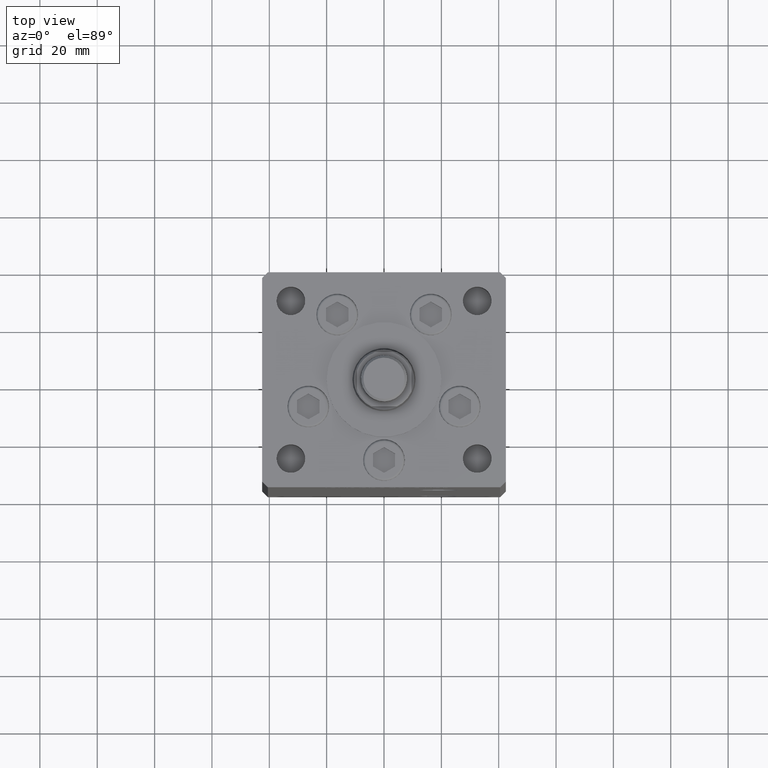
[diagram: clean part render]
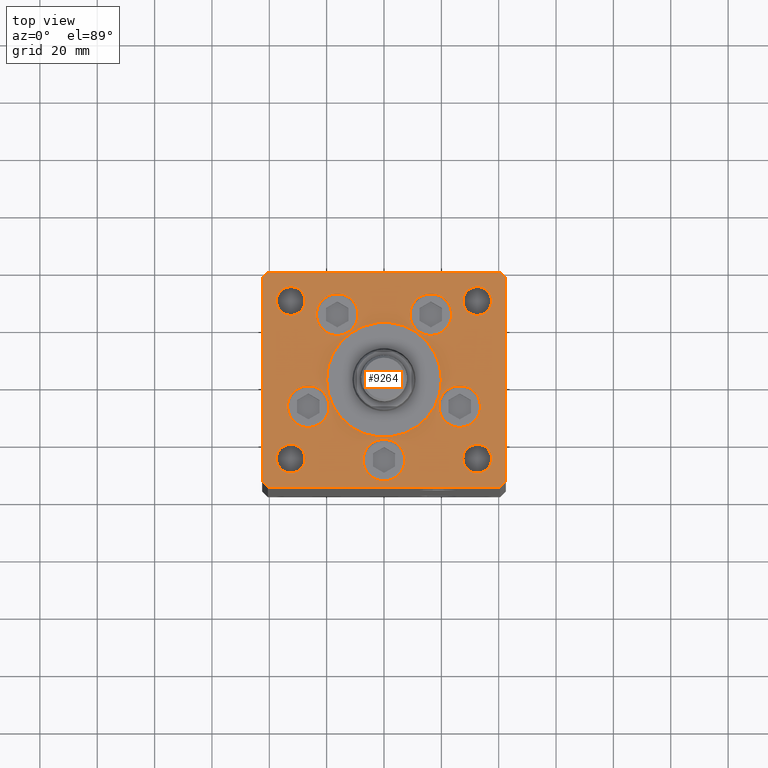
[diagram: same view with one face highlighted and labeled with its STEP entity id]
A machine part, top view. The second image highlights one B-rep face of the part: STEP entity #9264.
In plain terms, the highlighted planar face has unit normal (0, 0, 1).
Its self-contained STEP definition (entity closure, byte-faithful):
#113 = FACE_BOUND ( 'NONE', #35630, .T. ) ;
#317 = CARTESIAN_POINT ( 'NONE',  ( -33.64865316429777664, -9.333333333333328596, 0.000000000000000000 ) ) ;
#333 = AXIS2_PLACEMENT_3D ( 'NONE', #48482, #36827, #16151 ) ;
#346 = VERTEX_POINT ( 'NONE', #44888 ) ;
#647 = DIRECTION ( 'NONE',  ( -0.7071067811865524577, 0.7071067811865426878, 0.000000000000000000 ) ) ;
#734 = DIRECTION ( 'NONE',  ( 0.7071067811865487940, -0.7071067811865463515, 0.000000000000000000 ) ) ;
#1220 = AXIS2_PLACEMENT_3D ( 'NONE', #38939, #46353, #18275 ) ;
#1226 = VERTEX_POINT ( 'NONE', #26336 ) ;
#1297 = CARTESIAN_POINT ( 'NONE',  ( -40.50000000000000711, -37.50000000000003553, 0.000000000000000000 ) ) ;
#1333 = DIRECTION ( 'NONE',  ( -1.000000000000000000, -4.283267841918041508E-16, 0.000000000000000000 ) ) ;
#1534 = DIRECTION ( 'NONE',  ( -0.000000000000000000, -0.000000000000000000, -1.000000000000000000 ) ) ;
#1543 = VERTEX_POINT ( 'NONE', #35227 ) ;
#1621 = ORIENTED_EDGE ( 'NONE', *, *, #17884, .T. ) ;
#1698 = CARTESIAN_POINT ( 'NONE',  ( 33.64865316429777664, -9.333333333333330373, 0.000000000000000000 ) ) ;
#2116 = CARTESIAN_POINT ( 'NONE',  ( -19.14865316429777664, -9.333333333333330373, 0.000000000000000000 ) ) ;
#2189 = AXIS2_PLACEMENT_3D ( 'NONE', #14728, #38588, #39117 ) ;
#2220 = EDGE_CURVE ( 'NONE', #51420, #346, #47024, .T. ) ;
#2434 = DIRECTION ( 'NONE',  ( 1.000000000000000000, 0.000000000000000000, 0.000000000000000000 ) ) ;
#2469 = VERTEX_POINT ( 'NONE', #49538 ) ;
#2810 = DIRECTION ( 'NONE',  ( 1.000000000000000000, 0.000000000000000000, 0.000000000000000000 ) ) ;
#3305 = DIRECTION ( 'NONE',  ( -0.000000000000000000, 0.000000000000000000, 1.000000000000000000 ) ) ;
#3570 = CARTESIAN_POINT ( 'NONE',  ( 42.50000000000001421, 35.50000000000002132, 0.000000000000000000 ) ) ;
#4218 = CARTESIAN_POINT ( 'NONE',  ( -32.50000000000000000, -27.50000000000000355, 0.000000000000000000 ) ) ;
#4289 = CIRCLE ( 'NONE', #32224, 20.00000000000000000 ) ;
#4484 = DIRECTION ( 'NONE',  ( 0.000000000000000000, 0.000000000000000000, 1.000000000000000000 ) ) ;
#4492 = VERTEX_POINT ( 'NONE', #21078 ) ;
#4633 = ORIENTED_EDGE ( 'NONE', *, *, #22548, .F. ) ;
#5200 = EDGE_CURVE ( 'NONE', #52102, #15607, #22831, .T. ) ;
#5206 = ORIENTED_EDGE ( 'NONE', *, *, #18766, .T. ) ;
#5352 = VERTEX_POINT ( 'NONE', #25327 ) ;
#5383 = ORIENTED_EDGE ( 'NONE', *, *, #32701, .T. ) ;
#5391 = ORIENTED_EDGE ( 'NONE', *, *, #2220, .T. ) ;
#5469 = AXIS2_PLACEMENT_3D ( 'NONE', #17807, #26272, #17554 ) ;
#5491 = EDGE_LOOP ( 'NONE', ( #12337, #4633 ) ) ;
#5527 = VERTEX_POINT ( 'NONE', #19708 ) ;
#6006 = VERTEX_POINT ( 'NONE', #2116 ) ;
#6132 = CARTESIAN_POINT ( 'NONE',  ( -32.50000000000000000, 27.50000000000000711, 0.000000000000000000 ) ) ;
#6134 = EDGE_CURVE ( 'NONE', #24211, #43457, #20321, .T. ) ;
#6192 = EDGE_CURVE ( 'NONE', #6006, #10305, #48270, .T. ) ;
#6455 = DIRECTION ( 'NONE',  ( 0.7071067811865474617, 0.7071067811865474617, 0.000000000000000000 ) ) ;
#6680 = DIRECTION ( 'NONE',  ( 0.000000000000000000, 0.000000000000000000, 1.000000000000000000 ) ) ;
#6793 = CARTESIAN_POINT ( 'NONE',  ( 32.50000000000000000, 27.49999999999999645, 0.000000000000000000 ) ) ;
#6987 = CARTESIAN_POINT ( 'NONE',  ( 16.32291334290544071, 22.74999999999999289, 0.000000000000000000 ) ) ;
#7238 = CARTESIAN_POINT ( 'NONE',  ( 40.50000000000001421, -37.49999999999992184, 0.000000000000000000 ) ) ;
#7320 = DIRECTION ( 'NONE',  ( 0.000000000000000000, 0.000000000000000000, 1.000000000000000000 ) ) ;
#7978 = VERTEX_POINT ( 'NONE', #30422 ) ;
#8060 = ORIENTED_EDGE ( 'NONE', *, *, #10109, .T. ) ;
#8431 = DIRECTION ( 'NONE',  ( 0.000000000000000000, 0.000000000000000000, 1.000000000000000000 ) ) ;
#8886 = DIRECTION ( 'NONE',  ( 1.000000000000000000, 0.000000000000000000, 0.000000000000000000 ) ) ;
#9006 = DIRECTION ( 'NONE',  ( 0.000000000000000000, 0.000000000000000000, 1.000000000000000000 ) ) ;
#9264 = ADVANCED_FACE ( 'NONE', ( #23706, #11767, #36420, #24219, #27952, #113, #12291, #32451, #44110, #40127, #19989 ), #16014, .T. ) ;
#9803 = ORIENTED_EDGE ( 'NONE', *, *, #6192, .F. ) ;
#9857 = EDGE_CURVE ( 'NONE', #10305, #6006, #16081, .T. ) ;
#10109 = EDGE_CURVE ( 'NONE', #7978, #1543, #47406, .T. ) ;
#10305 = VERTEX_POINT ( 'NONE', #317 ) ;
#11136 = VECTOR ( 'NONE', #647, 1000.000000000000000 ) ;
#11767 = FACE_BOUND ( 'NONE', #5491, .T. ) ;
#12160 = CARTESIAN_POINT ( 'NONE',  ( -26.39865316429777664, -9.333333333333330373, 0.000000000000000000 ) ) ;
#12291 = FACE_BOUND ( 'NONE', #13704, .T. ) ;
#12337 = ORIENTED_EDGE ( 'NONE', *, *, #39159, .F. ) ;
#12938 = CARTESIAN_POINT ( 'NONE',  ( 23.57291334290544071, 22.74999999999999289, 0.000000000000000000 ) ) ;
#13029 = EDGE_LOOP ( 'NONE', ( #27471, #8060 ) ) ;
#13459 = VECTOR ( 'NONE', #47283, 1000.000000000000000 ) ;
#13704 = EDGE_LOOP ( 'NONE', ( #5206, #30591 ) ) ;
#13797 = VERTEX_POINT ( 'NONE', #49498 ) ;
#13924 = EDGE_CURVE ( 'NONE', #346, #1226, #36961, .T. ) ;
#14728 = CARTESIAN_POINT ( 'NONE',  ( 26.39865316429777664, -9.333333333333330373, 0.000000000000000000 ) ) ;
#14883 = VERTEX_POINT ( 'NONE', #47002 ) ;
#15078 = CARTESIAN_POINT ( 'NONE',  ( 9.072913342905442491, 22.74999999999999289, 0.000000000000000000 ) ) ;
#15607 = VERTEX_POINT ( 'NONE', #12938 ) ;
#15646 = VECTOR ( 'NONE', #44620, 1000.000000000000000 ) ;
#15792 = CIRCLE ( 'NONE', #23405, 7.249999999999999112 ) ;
#16014 = PLANE ( 'NONE',  #39758 ) ;
#16081 = CIRCLE ( 'NONE', #45717, 7.249999999999999112 ) ;
#16143 = VERTEX_POINT ( 'NONE', #26564 ) ;
#16151 = DIRECTION ( 'NONE',  ( 1.000000000000000000, 0.000000000000000000, 0.000000000000000000 ) ) ;
#16868 = ORIENTED_EDGE ( 'NONE', *, *, #22407, .F. ) ;
#17073 = CARTESIAN_POINT ( 'NONE',  ( 20.00000000000000000, -4.489600305612522259E-15, 0.000000000000000000 ) ) ;
#17085 = CARTESIAN_POINT ( 'NONE',  ( -9.072913342905442491, 22.74999999999999289, 0.000000000000000000 ) ) ;
#17383 = AXIS2_PLACEMENT_3D ( 'NONE', #24089, #23835, #36815 ) ;
#17473 = EDGE_CURVE ( 'NONE', #23524, #19960, #37868, .T. ) ;
#17554 = DIRECTION ( 'NONE',  ( 1.000000000000000000, 0.000000000000000000, 0.000000000000000000 ) ) ;
#17584 = DIRECTION ( 'NONE',  ( 0.000000000000000000, 0.000000000000000000, 1.000000000000000000 ) ) ;
#17708 = CARTESIAN_POINT ( 'NONE',  ( -32.50000000000000000, 27.50000000000000711, 0.000000000000000000 ) ) ;
#17807 = CARTESIAN_POINT ( 'NONE',  ( 0.000000000000000000, -6.938893903907228378E-15, 0.000000000000000000 ) ) ;
#17810 = DIRECTION ( 'NONE',  ( -1.000000000000000000, 0.000000000000000000, 0.000000000000000000 ) ) ;
#17884 = EDGE_CURVE ( 'NONE', #24463, #23524, #24314, .T. ) ;
#18275 = DIRECTION ( 'NONE',  ( -1.000000000000000000, 0.000000000000000000, 0.000000000000000000 ) ) ;
#18766 = EDGE_CURVE ( 'NONE', #44418, #14883, #51881, .T. ) ;
#18822 = ORIENTED_EDGE ( 'NONE', *, *, #25668, .F. ) ;
#19249 = CARTESIAN_POINT ( 'NONE',  ( 0.000000000000000000, -6.938893903907228378E-15, 0.000000000000000000 ) ) ;
#19312 = LINE ( 'NONE', #47662, #43859 ) ;
#19313 = ORIENTED_EDGE ( 'NONE', *, *, #5200, .F. ) ;
#19463 = CARTESIAN_POINT ( 'NONE',  ( 32.50000000000000000, 27.49999999999999645, 0.000000000000000000 ) ) ;
#19708 = CARTESIAN_POINT ( 'NONE',  ( -7.250000000000000000, -28.00000000000000000, 0.000000000000000000 ) ) ;
#19793 = VERTEX_POINT ( 'NONE', #17073 ) ;
#19960 = VERTEX_POINT ( 'NONE', #51472 ) ;
#19989 = FACE_BOUND ( 'NONE', #13029, .T. ) ;
#20321 = CIRCLE ( 'NONE', #31357, 7.249999999999999112 ) ;
#20657 = DIRECTION ( 'NONE',  ( 1.000000000000000000, 0.000000000000000000, 0.000000000000000000 ) ) ;
#20698 = CIRCLE ( 'NONE', #1220, 4.999999999999997335 ) ;
#21078 = CARTESIAN_POINT ( 'NONE',  ( 37.50000000000000000, 27.49999999999999645, 0.000000000000000000 ) ) ;
#21318 = CARTESIAN_POINT ( 'NONE',  ( -40.50000000000000000, 37.49999999999997158, 0.000000000000000000 ) ) ;
#21408 = EDGE_LOOP ( 'NONE', ( #48499, #16868 ) ) ;
#21907 = AXIS2_PLACEMENT_3D ( 'NONE', #30184, #21964, #34416 ) ;
#21964 = DIRECTION ( 'NONE',  ( 0.000000000000000000, 0.000000000000000000, 1.000000000000000000 ) ) ;
#22407 = EDGE_CURVE ( 'NONE', #19793, #13797, #23199, .T. ) ;
#22433 = EDGE_LOOP ( 'NONE', ( #51583, #51055 ) ) ;
#22548 = EDGE_CURVE ( 'NONE', #22884, #29380, #35084, .T. ) ;
#22558 = CARTESIAN_POINT ( 'NONE',  ( -40.50000000000000711, -37.50000000000003553, 0.000000000000000000 ) ) ;
#22831 = CIRCLE ( 'NONE', #52450, 7.249999999999999112 ) ;
#22864 = CARTESIAN_POINT ( 'NONE',  ( -27.50000000000000000, -27.50000000000000355, 0.000000000000000000 ) ) ;
#22884 = VERTEX_POINT ( 'NONE', #42619 ) ;
#23199 = CIRCLE ( 'NONE', #5469, 20.00000000000000000 ) ;
#23405 = AXIS2_PLACEMENT_3D ( 'NONE', #25264, #17584, #49916 ) ;
#23462 = EDGE_CURVE ( 'NONE', #14883, #44418, #24940, .T. ) ;
#23524 = VERTEX_POINT ( 'NONE', #22558 ) ;
#23677 = AXIS2_PLACEMENT_3D ( 'NONE', #24223, #29281, #36423 ) ;
#23706 = FACE_BOUND ( 'NONE', #21408, .T. ) ;
#23835 = DIRECTION ( 'NONE',  ( 0.000000000000000000, 0.000000000000000000, 1.000000000000000000 ) ) ;
#24089 = CARTESIAN_POINT ( 'NONE',  ( 0.000000000000000000, -28.00000000000000000, 0.000000000000000000 ) ) ;
#24211 = VERTEX_POINT ( 'NONE', #1698 ) ;
#24219 = FACE_BOUND ( 'NONE', #22433, .T. ) ;
#24223 = CARTESIAN_POINT ( 'NONE',  ( 32.50000000000000000, -27.50000000000000355, 0.000000000000000000 ) ) ;
#24314 = LINE ( 'NONE', #40750, #49324 ) ;
#24463 = VERTEX_POINT ( 'NONE', #51499 ) ;
#24731 = ORIENTED_EDGE ( 'NONE', *, *, #46993, .F. ) ;
#24940 = CIRCLE ( 'NONE', #29195, 5.000000000000004441 ) ;
#25264 = CARTESIAN_POINT ( 'NONE',  ( -16.32291334290544071, 22.74999999999999289, 0.000000000000000000 ) ) ;
#25317 = ORIENTED_EDGE ( 'NONE', *, *, #39235, .F. ) ;
#25327 = CARTESIAN_POINT ( 'NONE',  ( -42.50000000000000711, 35.50000000000000000, 0.000000000000000000 ) ) ;
#25508 = DIRECTION ( 'NONE',  ( -0.000000000000000000, -0.000000000000000000, -1.000000000000000000 ) ) ;
#25668 = EDGE_CURVE ( 'NONE', #49644, #35422, #52052, .T. ) ;
#26272 = DIRECTION ( 'NONE',  ( 0.000000000000000000, 0.000000000000000000, 1.000000000000000000 ) ) ;
#26336 = CARTESIAN_POINT ( 'NONE',  ( 40.50000000000000711, 37.50000000000000711, 0.000000000000000000 ) ) ;
#26564 = CARTESIAN_POINT ( 'NONE',  ( -40.50000000000000000, 37.49999999999997158, 0.000000000000000000 ) ) ;
#26885 = CARTESIAN_POINT ( 'NONE',  ( 42.50000000000000711, -35.49999999999992895, 0.000000000000000000 ) ) ;
#27192 = ORIENTED_EDGE ( 'NONE', *, *, #17473, .T. ) ;
#27385 = DIRECTION ( 'NONE',  ( 1.000000000000000000, 0.000000000000000000, 0.000000000000000000 ) ) ;
#27416 = ORIENTED_EDGE ( 'NONE', *, *, #47830, .F. ) ;
#27471 = ORIENTED_EDGE ( 'NONE', *, *, #27668, .T. ) ;
#27668 = EDGE_CURVE ( 'NONE', #1543, #7978, #20698, .T. ) ;
#27876 = AXIS2_PLACEMENT_3D ( 'NONE', #6987, #46998, #27385 ) ;
#27952 = FACE_BOUND ( 'NONE', #44376, .T. ) ;
#27968 = AXIS2_PLACEMENT_3D ( 'NONE', #44215, #8431, #31784 ) ;
#28184 = AXIS2_PLACEMENT_3D ( 'NONE', #17708, #1534, #45795 ) ;
#28756 = ORIENTED_EDGE ( 'NONE', *, *, #28893, .F. ) ;
#28893 = EDGE_CURVE ( 'NONE', #5527, #2469, #35116, .T. ) ;
#29003 = VECTOR ( 'NONE', #41047, 1000.000000000000000 ) ;
#29195 = AXIS2_PLACEMENT_3D ( 'NONE', #6132, #25508, #17810 ) ;
#29281 = DIRECTION ( 'NONE',  ( -0.000000000000000000, -0.000000000000000000, -1.000000000000000000 ) ) ;
#29379 = CIRCLE ( 'NONE', #51377, 5.000000000000000888 ) ;
#29380 = VERTEX_POINT ( 'NONE', #17085 ) ;
#29485 = EDGE_CURVE ( 'NONE', #16143, #5352, #37747, .T. ) ;
#30057 = AXIS2_PLACEMENT_3D ( 'NONE', #4218, #9006, #48750 ) ;
#30184 = CARTESIAN_POINT ( 'NONE',  ( 0.000000000000000000, -28.00000000000000000, 0.000000000000000000 ) ) ;
#30422 = CARTESIAN_POINT ( 'NONE',  ( 27.50000000000000355, -27.50000000000000355, 0.000000000000000000 ) ) ;
#30591 = ORIENTED_EDGE ( 'NONE', *, *, #23462, .T. ) ;
#30809 = CARTESIAN_POINT ( 'NONE',  ( -32.50000000000000000, -27.50000000000000355, 0.000000000000000000 ) ) ;
#31357 = AXIS2_PLACEMENT_3D ( 'NONE', #36004, #35488, #43950 ) ;
#31784 = DIRECTION ( 'NONE',  ( 1.000000000000000000, 0.000000000000000000, 0.000000000000000000 ) ) ;
#31999 = AXIS2_PLACEMENT_3D ( 'NONE', #19463, #44097, #47299 ) ;
#32189 = CARTESIAN_POINT ( 'NONE',  ( 0.000000000000000000, 0.000000000000000000, 0.000000000000000000 ) ) ;
#32224 = AXIS2_PLACEMENT_3D ( 'NONE', #19249, #47599, #8886 ) ;
#32451 = FACE_BOUND ( 'NONE', #49746, .T. ) ;
#32701 = EDGE_CURVE ( 'NONE', #5352, #24463, #19312, .T. ) ;
#33011 = VERTEX_POINT ( 'NONE', #35166 ) ;
#33673 = LINE ( 'NONE', #37651, #46550 ) ;
#34319 = ORIENTED_EDGE ( 'NONE', *, *, #13924, .T. ) ;
#34355 = ORIENTED_EDGE ( 'NONE', *, *, #29485, .T. ) ;
#34416 = DIRECTION ( 'NONE',  ( 1.000000000000000000, 0.000000000000000000, 0.000000000000000000 ) ) ;
#35008 = CARTESIAN_POINT ( 'NONE',  ( 19.14865316429777664, -9.333333333333328596, 0.000000000000000000 ) ) ;
#35084 = CIRCLE ( 'NONE', #333, 7.249999999999999112 ) ;
#35116 = CIRCLE ( 'NONE', #17383, 7.250000000000000000 ) ;
#35166 = CARTESIAN_POINT ( 'NONE',  ( 27.50000000000000355, 27.49999999999999645, 0.000000000000000000 ) ) ;
#35168 = EDGE_LOOP ( 'NONE', ( #1621, #27192, #43955, #5391, #34319, #50616, #34355, #5383 ) ) ;
#35227 = CARTESIAN_POINT ( 'NONE',  ( 37.50000000000000000, -27.50000000000000355, 0.000000000000000000 ) ) ;
#35408 = CARTESIAN_POINT ( 'NONE',  ( 42.50000000000000711, -35.49999999999992895, 0.000000000000000000 ) ) ;
#35422 = VERTEX_POINT ( 'NONE', #22864 ) ;
#35488 = DIRECTION ( 'NONE',  ( 0.000000000000000000, 0.000000000000000000, 1.000000000000000000 ) ) ;
#35630 = EDGE_LOOP ( 'NONE', ( #9803, #39406 ) ) ;
#36004 = CARTESIAN_POINT ( 'NONE',  ( 26.39865316429777664, -9.333333333333330373, 0.000000000000000000 ) ) ;
#36280 = EDGE_CURVE ( 'NONE', #43457, #24211, #40268, .T. ) ;
#36420 = FACE_BOUND ( 'NONE', #48391, .T. ) ;
#36423 = DIRECTION ( 'NONE',  ( -1.000000000000000000, 0.000000000000000000, 0.000000000000000000 ) ) ;
#36815 = DIRECTION ( 'NONE',  ( 1.000000000000000000, 0.000000000000000000, 0.000000000000000000 ) ) ;
#36827 = DIRECTION ( 'NONE',  ( 0.000000000000000000, 0.000000000000000000, 1.000000000000000000 ) ) ;
#36961 = LINE ( 'NONE', #3570, #11136 ) ;
#37651 = CARTESIAN_POINT ( 'NONE',  ( 40.50000000000000711, 37.50000000000000711, 0.000000000000000000 ) ) ;
#37747 = LINE ( 'NONE', #21318, #15646 ) ;
#37868 = LINE ( 'NONE', #1297, #29003 ) ;
#38588 = DIRECTION ( 'NONE',  ( 0.000000000000000000, 0.000000000000000000, 1.000000000000000000 ) ) ;
#38939 = CARTESIAN_POINT ( 'NONE',  ( 32.50000000000000000, -27.50000000000000355, 0.000000000000000000 ) ) ;
#39117 = DIRECTION ( 'NONE',  ( 1.000000000000000000, 0.000000000000000000, 0.000000000000000000 ) ) ;
#39144 = DIRECTION ( 'NONE',  ( 1.000000000000000000, 0.000000000000000000, 0.000000000000000000 ) ) ;
#39159 = EDGE_CURVE ( 'NONE', #29380, #22884, #15792, .T. ) ;
#39235 = EDGE_CURVE ( 'NONE', #35422, #49644, #29379, .T. ) ;
#39382 = DIRECTION ( 'NONE',  ( 0.000000000000000000, 0.000000000000000000, 1.000000000000000000 ) ) ;
#39406 = ORIENTED_EDGE ( 'NONE', *, *, #9857, .F. ) ;
#39758 = AXIS2_PLACEMENT_3D ( 'NONE', #32189, #3305, #48608 ) ;
#40127 = FACE_OUTER_BOUND ( 'NONE', #35168, .T. ) ;
#40268 = CIRCLE ( 'NONE', #2189, 7.249999999999999112 ) ;
#40608 = ORIENTED_EDGE ( 'NONE', *, *, #42211, .F. ) ;
#40750 = CARTESIAN_POINT ( 'NONE',  ( -42.50000000000000000, -35.50000000000004263, 0.000000000000000000 ) ) ;
#41047 = DIRECTION ( 'NONE',  ( 1.000000000000000000, 1.370645709413773283E-15, 0.000000000000000000 ) ) ;
#41322 = CIRCLE ( 'NONE', #21907, 7.250000000000000000 ) ;
#42211 = EDGE_CURVE ( 'NONE', #33011, #4492, #46372, .T. ) ;
#42619 = CARTESIAN_POINT ( 'NONE',  ( -23.57291334290544071, 22.74999999999999289, 0.000000000000000000 ) ) ;
#43123 = VECTOR ( 'NONE', #6455, 1000.000000000000114 ) ;
#43181 = CARTESIAN_POINT ( 'NONE',  ( -27.50000000000000000, 27.50000000000000711, 0.000000000000000000 ) ) ;
#43457 = VERTEX_POINT ( 'NONE', #35008 ) ;
#43622 = EDGE_CURVE ( 'NONE', #2469, #5527, #41322, .T. ) ;
#43859 = VECTOR ( 'NONE', #51388, 1000.000000000000000 ) ;
#43950 = DIRECTION ( 'NONE',  ( 1.000000000000000000, 0.000000000000000000, 0.000000000000000000 ) ) ;
#43955 = ORIENTED_EDGE ( 'NONE', *, *, #46939, .T. ) ;
#44097 = DIRECTION ( 'NONE',  ( 0.000000000000000000, 0.000000000000000000, 1.000000000000000000 ) ) ;
#44110 = FACE_BOUND ( 'NONE', #47213, .T. ) ;
#44215 = CARTESIAN_POINT ( 'NONE',  ( -26.39865316429777664, -9.333333333333330373, 0.000000000000000000 ) ) ;
#44376 = EDGE_LOOP ( 'NONE', ( #44461, #28756 ) ) ;
#44418 = VERTEX_POINT ( 'NONE', #43181 ) ;
#44461 = ORIENTED_EDGE ( 'NONE', *, *, #43622, .F. ) ;
#44620 = DIRECTION ( 'NONE',  ( -0.7071067811865536790, -0.7071067811865414665, 0.000000000000000000 ) ) ;
#44888 = CARTESIAN_POINT ( 'NONE',  ( 42.50000000000001421, 35.50000000000002132, 0.000000000000000000 ) ) ;
#45717 = AXIS2_PLACEMENT_3D ( 'NONE', #12160, #4484, #20657 ) ;
#45795 = DIRECTION ( 'NONE',  ( -1.000000000000000000, 0.000000000000000000, 0.000000000000000000 ) ) ;
#46211 = CARTESIAN_POINT ( 'NONE',  ( -37.50000000000000711, -27.50000000000000355, 0.000000000000000000 ) ) ;
#46353 = DIRECTION ( 'NONE',  ( -0.000000000000000000, -0.000000000000000000, -1.000000000000000000 ) ) ;
#46372 = CIRCLE ( 'NONE', #31999, 4.999999999999997335 ) ;
#46550 = VECTOR ( 'NONE', #1333, 1000.000000000000000 ) ;
#46939 = EDGE_CURVE ( 'NONE', #19960, #51420, #47256, .T. ) ;
#46993 = EDGE_CURVE ( 'NONE', #15607, #52102, #49072, .T. ) ;
#46998 = DIRECTION ( 'NONE',  ( 0.000000000000000000, 0.000000000000000000, 1.000000000000000000 ) ) ;
#47002 = CARTESIAN_POINT ( 'NONE',  ( -37.50000000000000711, 27.50000000000000711, 0.000000000000000000 ) ) ;
#47024 = LINE ( 'NONE', #26885, #13459 ) ;
#47213 = EDGE_LOOP ( 'NONE', ( #25317, #18822 ) ) ;
#47256 = LINE ( 'NONE', #7238, #43123 ) ;
#47283 = DIRECTION ( 'NONE',  ( 9.773090005503145261E-17, 1.000000000000000000, 0.000000000000000000 ) ) ;
#47299 = DIRECTION ( 'NONE',  ( 1.000000000000000000, 0.000000000000000000, 0.000000000000000000 ) ) ;
#47406 = CIRCLE ( 'NONE', #23677, 4.999999999999997335 ) ;
#47599 = DIRECTION ( 'NONE',  ( 0.000000000000000000, 0.000000000000000000, 1.000000000000000000 ) ) ;
#47607 = CARTESIAN_POINT ( 'NONE',  ( 16.32291334290544071, 22.74999999999999289, 0.000000000000000000 ) ) ;
#47662 = CARTESIAN_POINT ( 'NONE',  ( -42.50000000000000711, 35.50000000000000000, 0.000000000000000000 ) ) ;
#47830 = EDGE_CURVE ( 'NONE', #4492, #33011, #50774, .T. ) ;
#48229 = EDGE_CURVE ( 'NONE', #1226, #16143, #33673, .T. ) ;
#48270 = CIRCLE ( 'NONE', #27968, 7.249999999999999112 ) ;
#48391 = EDGE_LOOP ( 'NONE', ( #24731, #19313 ) ) ;
#48482 = CARTESIAN_POINT ( 'NONE',  ( -16.32291334290544071, 22.74999999999999289, 0.000000000000000000 ) ) ;
#48499 = ORIENTED_EDGE ( 'NONE', *, *, #51439, .F. ) ;
#48608 = DIRECTION ( 'NONE',  ( 1.000000000000000000, 0.000000000000000000, 0.000000000000000000 ) ) ;
#48750 = DIRECTION ( 'NONE',  ( 1.000000000000000000, 0.000000000000000000, 0.000000000000000000 ) ) ;
#49072 = CIRCLE ( 'NONE', #27876, 7.249999999999999112 ) ;
#49324 = VECTOR ( 'NONE', #734, 1000.000000000000000 ) ;
#49498 = CARTESIAN_POINT ( 'NONE',  ( -20.00000000000000000, -6.938893903907228378E-15, 0.000000000000000000 ) ) ;
#49538 = CARTESIAN_POINT ( 'NONE',  ( 7.250000000000000000, -28.00000000000000000, 0.000000000000000000 ) ) ;
#49644 = VERTEX_POINT ( 'NONE', #46211 ) ;
#49746 = EDGE_LOOP ( 'NONE', ( #27416, #40608 ) ) ;
#49916 = DIRECTION ( 'NONE',  ( 1.000000000000000000, 0.000000000000000000, 0.000000000000000000 ) ) ;
#50616 = ORIENTED_EDGE ( 'NONE', *, *, #48229, .T. ) ;
#50774 = CIRCLE ( 'NONE', #51635, 4.999999999999997335 ) ;
#51055 = ORIENTED_EDGE ( 'NONE', *, *, #36280, .F. ) ;
#51377 = AXIS2_PLACEMENT_3D ( 'NONE', #30809, #6680, #2434 ) ;
#51388 = DIRECTION ( 'NONE',  ( 9.773090005503134168E-17, -1.000000000000000000, 0.000000000000000000 ) ) ;
#51420 = VERTEX_POINT ( 'NONE', #35408 ) ;
#51439 = EDGE_CURVE ( 'NONE', #13797, #19793, #4289, .T. ) ;
#51472 = CARTESIAN_POINT ( 'NONE',  ( 40.50000000000001421, -37.49999999999992184, 0.000000000000000000 ) ) ;
#51499 = CARTESIAN_POINT ( 'NONE',  ( -42.50000000000000000, -35.50000000000004263, 0.000000000000000000 ) ) ;
#51583 = ORIENTED_EDGE ( 'NONE', *, *, #6134, .F. ) ;
#51635 = AXIS2_PLACEMENT_3D ( 'NONE', #6793, #39382, #2810 ) ;
#51881 = CIRCLE ( 'NONE', #28184, 5.000000000000004441 ) ;
#52052 = CIRCLE ( 'NONE', #30057, 5.000000000000000888 ) ;
#52102 = VERTEX_POINT ( 'NONE', #15078 ) ;
#52450 = AXIS2_PLACEMENT_3D ( 'NONE', #47607, #7320, #39144 ) ;